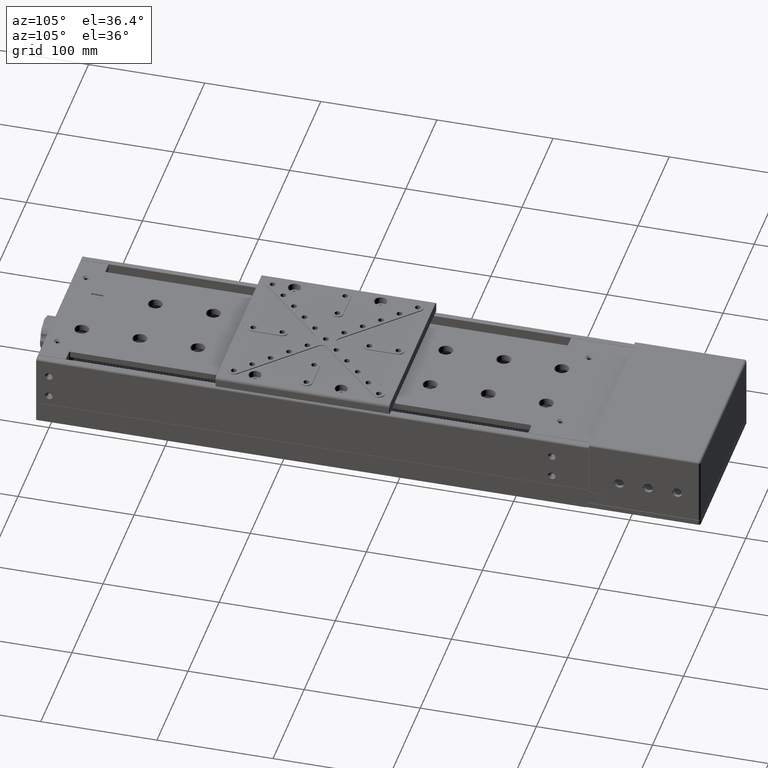
[diagram: clean part render]
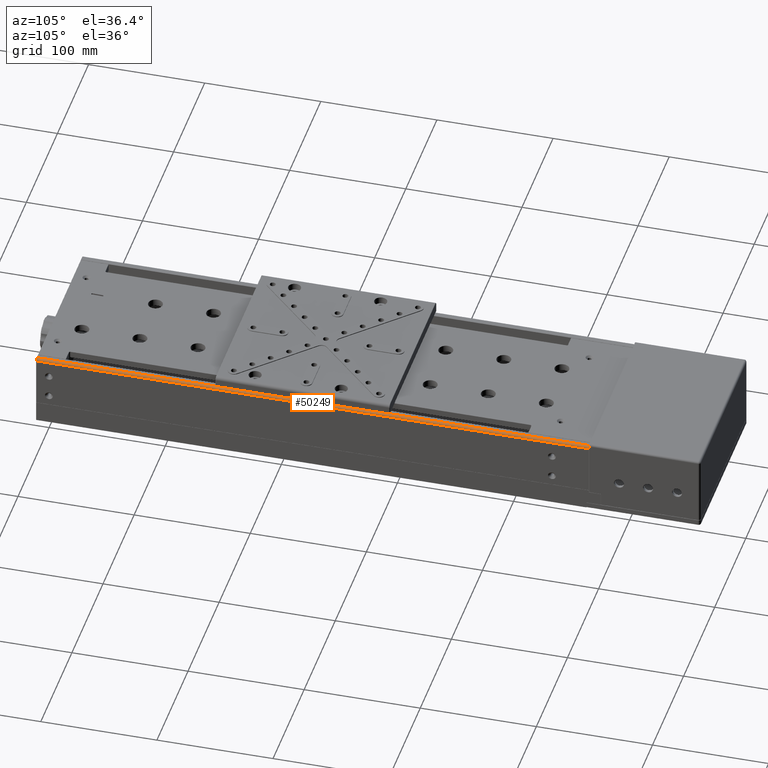
[diagram: same view with one face highlighted and labeled with its STEP entity id]
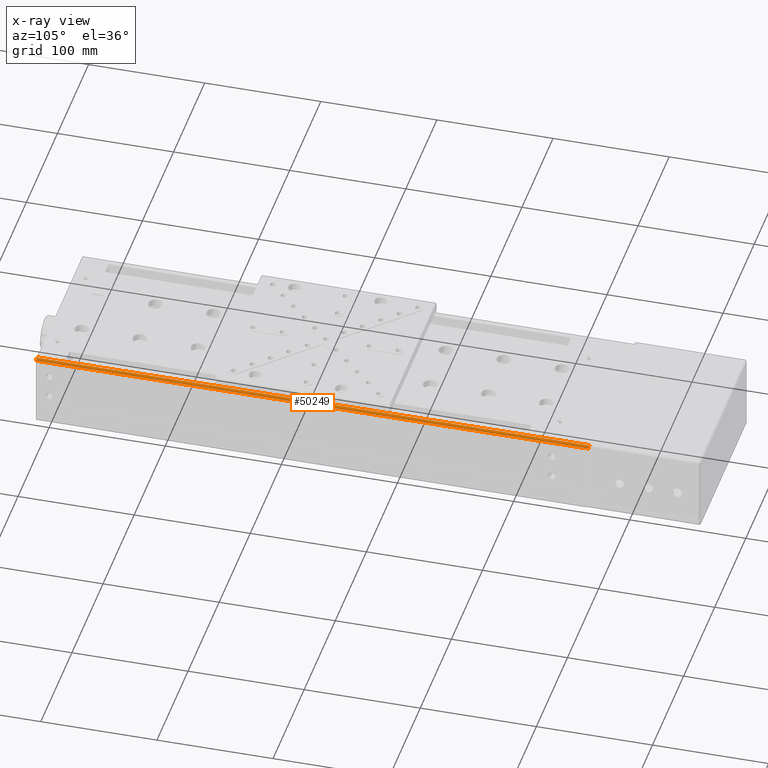
[diagram: x-ray of the same camera — body ghosted, the highlighted face saturated]
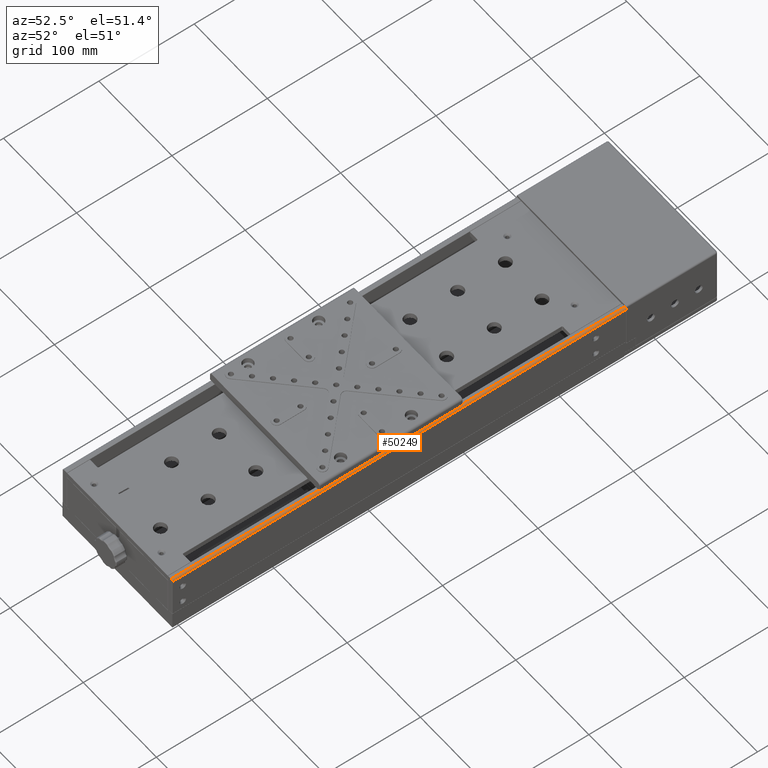
[diagram: same view with one face highlighted and labeled with its STEP entity id]
A machine part, auxiliary view. The second image highlights one B-rep face of the part: STEP entity #50249.
The next image is the same camera in x-ray: the body ghosted, the highlighted face saturated — about 0% of this face is hidden behind the body in this view.
A second angle (auxiliary view) of the same face is appended — the face is thin or edge-on in the first view.
In plain terms, the highlighted cylindrical surface (edge-blend (fillet) strip) has radius 2 mm, axis along (0, 1, -0).
Its self-contained STEP definition (entity closure, byte-faithful):
#3524 = CARTESIAN_POINT ( 'NONE',  ( 2.414567697119070377, -109.7688097581719973, 39.04665025355554775 ) ) ;
#4039 = AXIS2_PLACEMENT_3D ( 'NONE', #55283, #24303, #30440 ) ;
#5358 = ORIENTED_EDGE ( 'NONE', *, *, #14134, .F. ) ;
#6726 = CARTESIAN_POINT ( 'NONE',  ( 4.414567697119069933, -109.7688097581719973, 39.04665025355554775 ) ) ;
#6786 = DIRECTION ( 'NONE',  ( 0.000000000000000000, 1.000000000000000000, -1.038665681241111892E-16 ) ) ;
#6797 = CARTESIAN_POINT ( 'NONE',  ( 2.414567697118910061, 366.0311902418280283, 41.04665025355549801 ) ) ;
#7785 = AXIS2_PLACEMENT_3D ( 'NONE', #75579, #6786, #12480 ) ;
#12480 = DIRECTION ( 'NONE',  ( -1.000000000000000000, 0.000000000000000000, 0.000000000000000000 ) ) ;
#14134 = EDGE_CURVE ( 'NONE', #58598, #74219, #28809, .T. ) ;
#17081 = CARTESIAN_POINT ( 'NONE',  ( 2.414567697119070377, -109.7688097581719973, 41.04665025355554775 ) ) ;
#18933 = EDGE_CURVE ( 'NONE', #78448, #58598, #19796, .T. ) ;
#19796 = LINE ( 'NONE', #6797, #49469 ) ;
#20738 = CARTESIAN_POINT ( 'NONE',  ( 2.414567697118910061, 366.0311902418280283, 41.04665025355549801 ) ) ;
#21825 = CARTESIAN_POINT ( 'NONE',  ( 4.414567697119069933, -109.9688097581720001, 39.04665025355554775 ) ) ;
#22464 = ORIENTED_EDGE ( 'NONE', *, *, #18933, .F. ) ;
#24303 = DIRECTION ( 'NONE',  ( 0.000000000000000000, 1.000000000000000000, -1.038665681241111892E-16 ) ) ;
#25046 = ORIENTED_EDGE ( 'NONE', *, *, #76416, .T. ) ;
#28809 = CIRCLE ( 'NONE', #4039, 2.000000000000000444 ) ;
#30440 = DIRECTION ( 'NONE',  ( 1.000000000000000000, 0.000000000000000000, 0.000000000000000000 ) ) ;
#33660 = DIRECTION ( 'NONE',  ( 3.330304365079189903E-16, -1.000000000000000000, 1.038665681241111892E-16 ) ) ;
#36419 = CARTESIAN_POINT ( 'NONE',  ( 4.414567697118910061, 366.0311902418280283, 39.04665025355549801 ) ) ;
#36908 = FACE_OUTER_BOUND ( 'NONE', #54021, .T. ) ;
#39495 = EDGE_CURVE ( 'NONE', #74219, #45369, #65796, .T. ) ;
#40161 = DIRECTION ( 'NONE',  ( 0.000000000000000000, 1.000000000000000000, -1.038665681241111892E-16 ) ) ;
#40653 = ORIENTED_EDGE ( 'NONE', *, *, #39495, .F. ) ;
#44395 = CIRCLE ( 'NONE', #78211, 2.000000000000000000 ) ;
#45369 = VERTEX_POINT ( 'NONE', #6726 ) ;
#49469 = VECTOR ( 'NONE', #56469, 1000.000000000000000 ) ;
#50249 = ADVANCED_FACE ( 'NONE', ( #36908 ), #68257, .T. ) ;
#54021 = EDGE_LOOP ( 'NONE', ( #22464, #25046, #40653, #5358 ) ) ;
#55283 = CARTESIAN_POINT ( 'NONE',  ( 2.414567697118910061, 366.0311902418280283, 39.04665025355549801 ) ) ;
#56469 = DIRECTION ( 'NONE',  ( -3.330304365079189903E-16, 1.000000000000000000, -1.038665681241111892E-16 ) ) ;
#58598 = VERTEX_POINT ( 'NONE', #20738 ) ;
#65796 = LINE ( 'NONE', #21825, #69948 ) ;
#68257 = CYLINDRICAL_SURFACE ( 'NONE', #7785, 2.000000000000000000 ) ;
#69948 = VECTOR ( 'NONE', #33660, 1000.000000000000000 ) ;
#74219 = VERTEX_POINT ( 'NONE', #36419 ) ;
#75579 = CARTESIAN_POINT ( 'NONE',  ( 2.414567697119070377, -109.9688097581720001, 39.04665025355554775 ) ) ;
#76416 = EDGE_CURVE ( 'NONE', #78448, #45369, #44395, .T. ) ;
#77198 = DIRECTION ( 'NONE',  ( -1.000000000000000000, 0.000000000000000000, 0.000000000000000000 ) ) ;
#78211 = AXIS2_PLACEMENT_3D ( 'NONE', #3524, #40161, #77198 ) ;
#78448 = VERTEX_POINT ( 'NONE', #17081 ) ;